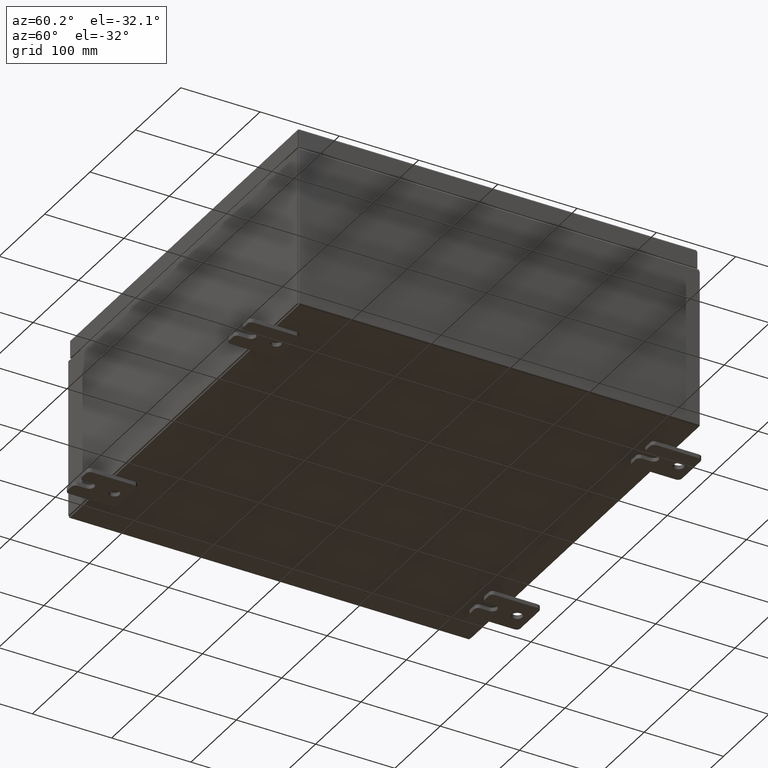
[diagram: clean part render]
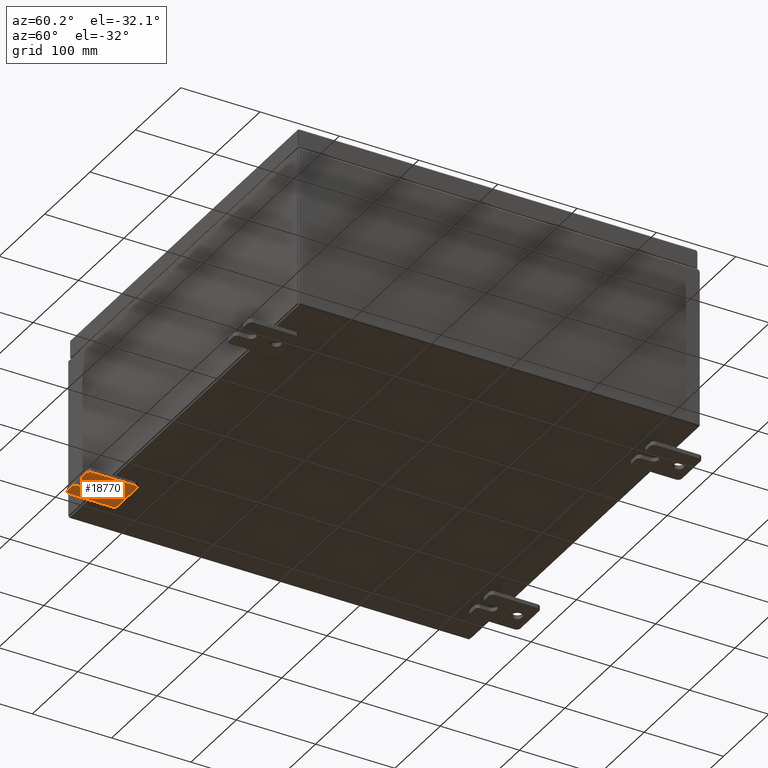
[diagram: same view with one face highlighted and labeled with its STEP entity id]
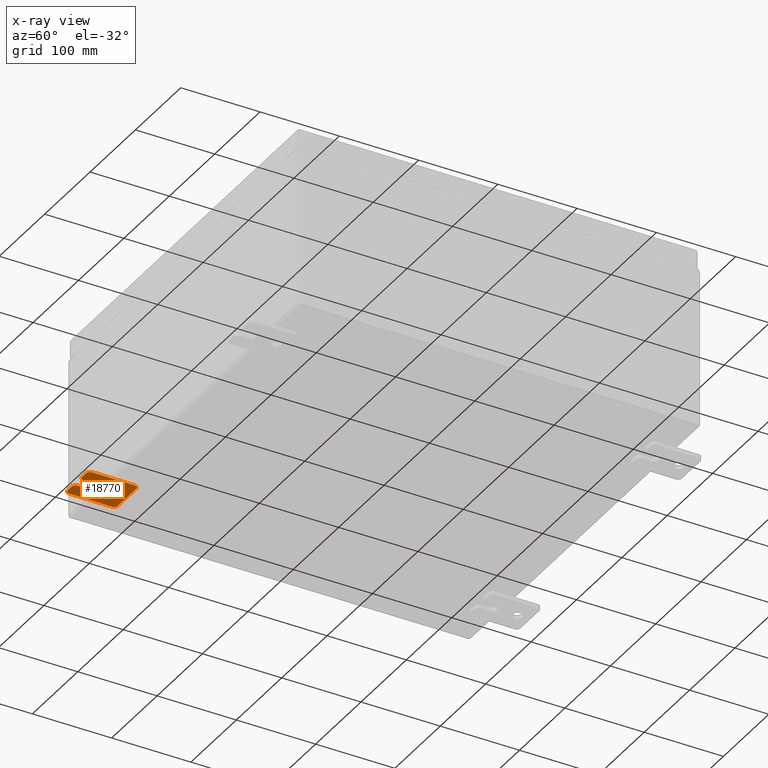
[diagram: x-ray of the same camera — body ghosted, the highlighted face saturated]
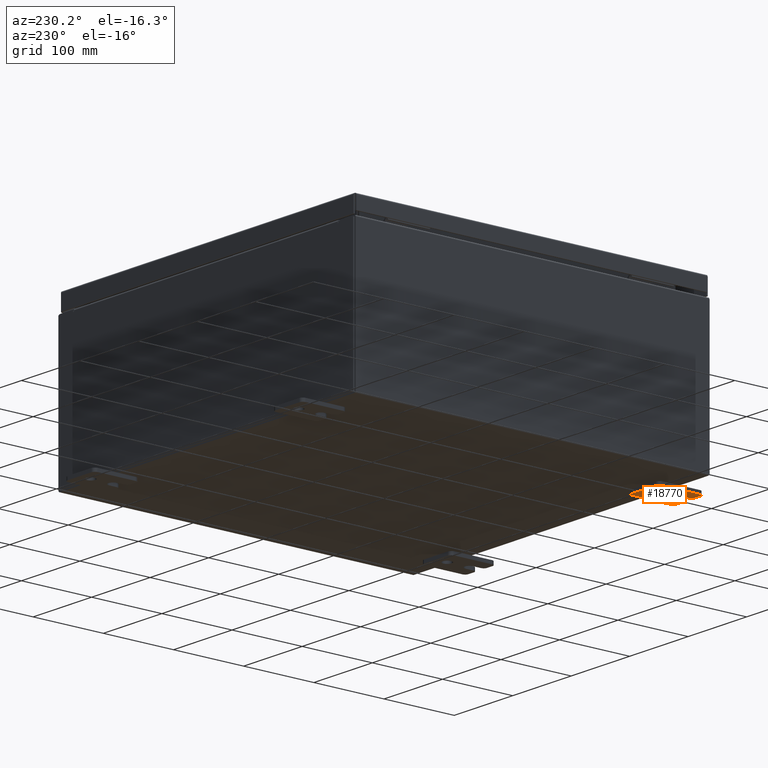
[diagram: same view with one face highlighted and labeled with its STEP entity id]
A machine part, auxiliary view. The second image highlights one B-rep face of the part: STEP entity #18770.
The next image is the same camera in x-ray: the body ghosted, the highlighted face saturated — about 0% of this face is hidden behind the body in this view.
A second angle (auxiliary view) of the same face is appended — the face is thin or edge-on in the first view.
In plain terms, the highlighted planar face has unit normal (0, 0, 1).
Its self-contained STEP definition (entity closure, byte-faithful):
#621 = CARTESIAN_POINT ( 'NONE',  ( -0.1880000000000004700, -1.060000000000003400, -0.2499999999999994400 ) ) ;
#1196 = CARTESIAN_POINT ( 'NONE',  ( -0.1880000000000001900, -0.6249999999999992200, -0.2499999999999993900 ) ) ;
#1689 = VERTEX_POINT ( 'NONE', #49524 ) ;
#2156 = CIRCLE ( 'NONE', #18433, 0.1900000000000011100 ) ;
#2888 = VERTEX_POINT ( 'NONE', #53144 ) ;
#3782 = EDGE_CURVE ( 'NONE', #29978, #16118, #25845, .T. ) ;
#3804 = LINE ( 'NONE', #33017, #44484 ) ;
#4277 = DIRECTION ( 'NONE',  ( 0.0000000000000000000, -1.639108796198553600E-015, -1.000000000000000000 ) ) ;
#4812 = AXIS2_PLACEMENT_3D ( 'NONE', #39625, #10228, #44544 ) ;
#5568 = DIRECTION ( 'NONE',  ( 0.0000000000000000000, 1.000000000000000000, -1.639108796198558100E-015 ) ) ;
#5922 = CARTESIAN_POINT ( 'NONE',  ( -0.1880000000000010000, 0.6249999999999992200, -7.703811342100550500E-020 ) ) ;
#6337 = CARTESIAN_POINT ( 'NONE',  ( -0.1880000000000004700, -1.060000000000002100, 0.2500000000000005000 ) ) ;
#7092 = ORIENTED_EDGE ( 'NONE', *, *, #30725, .T. ) ;
#7517 = LINE ( 'NONE', #1196, #35106 ) ;
#7537 = EDGE_CURVE ( 'NONE', #2888, #1689, #29253, .T. ) ;
#7865 = LINE ( 'NONE', #38674, #19326 ) ;
#8914 = DIRECTION ( 'NONE',  ( -1.000000000000000000, -0.0000000000000000000, 0.0000000000000000000 ) ) ;
#9251 = DIRECTION ( 'NONE',  ( 0.0000000000000000000, 1.639108796198553600E-015, 1.000000000000000000 ) ) ;
#9985 = VERTEX_POINT ( 'NONE', #39774 ) ;
#10143 = EDGE_LOOP ( 'NONE', ( #12572, #49768, #15398, #7092, #17786, #61388, #61694, #50624, #36425, #17057, #37440, #25002, #21096, #36300 ) ) ;
#10228 = DIRECTION ( 'NONE',  ( -1.000000000000000000, 6.523827964459549700E-016, 5.163192708025532000E-017 ) ) ;
#10686 = VECTOR ( 'NONE', #15940, 39.37007874015748100 ) ;
#10797 = DIRECTION ( 'NONE',  ( -1.000000000000000000, -0.0000000000000000000, 0.0000000000000000000 ) ) ;
#10897 = DIRECTION ( 'NONE',  ( 0.0000000000000000000, 0.0000000000000000000, -1.000000000000000000 ) ) ;
#11052 = CARTESIAN_POINT ( 'NONE',  ( -0.1880000000000005800, -1.250000000000003800, 0.2500000000000005000 ) ) ;
#11437 = CARTESIAN_POINT ( 'NONE',  ( -0.1880000000000001900, -0.6249999999999992200, 0.2500000000000005000 ) ) ;
#12572 = ORIENTED_EDGE ( 'NONE', *, *, #38375, .F. ) ;
#13296 = CARTESIAN_POINT ( 'NONE',  ( -0.1880000000000010000, 0.6249999999999992200, -7.703811342100550500E-020 ) ) ;
#14392 = EDGE_CURVE ( 'NONE', #32473, #42218, #26673, .T. ) ;
#14715 = LINE ( 'NONE', #54481, #39316 ) ;
#15398 = ORIENTED_EDGE ( 'NONE', *, *, #40998, .F. ) ;
#15753 = DIRECTION ( 'NONE',  ( -6.556435184794182400E-016, -1.000000000000000000, -1.639108796198545600E-016 ) ) ;
#15940 = DIRECTION ( 'NONE',  ( 6.556435184794182400E-016, 1.000000000000000000, 0.0000000000000000000 ) ) ;
#16118 = VERTEX_POINT ( 'NONE', #39492 ) ;
#17057 = ORIENTED_EDGE ( 'NONE', *, *, #14392, .T. ) ;
#17200 = FACE_OUTER_BOUND ( 'NONE', #10143, .T. ) ;
#17546 = CARTESIAN_POINT ( 'NONE',  ( -0.1879999999999997800, 0.0000000000000000000, 0.0000000000000000000 ) ) ;
#17786 = ORIENTED_EDGE ( 'NONE', *, *, #54498, .F. ) ;
#18191 = DIRECTION ( 'NONE',  ( 0.0000000000000000000, 0.0000000000000000000, -1.000000000000000000 ) ) ;
#18433 = AXIS2_PLACEMENT_3D ( 'NONE', #40206, #10797, #45108 ) ;
#18770 = ADVANCED_FACE ( 'NONE', ( #54792, #17200 ), #56788, .F. ) ;
#19326 = VECTOR ( 'NONE', #9251, 39.37007874015748100 ) ;
#20042 = DIRECTION ( 'NONE',  ( 0.0000000000000000000, -1.000000000000000000, 1.639108796198558100E-015 ) ) ;
#20088 = AXIS2_PLACEMENT_3D ( 'NONE', #13296, #47624, #18191 ) ;
#21096 = ORIENTED_EDGE ( 'NONE', *, *, #59653, .F. ) ;
#21314 = EDGE_CURVE ( 'NONE', #26872, #29155, #48773, .T. ) ;
#21485 = CARTESIAN_POINT ( 'NONE',  ( -0.1879999999999997800, -1.060000000000002100, 0.4400000000000016700 ) ) ;
#21968 = DIRECTION ( 'NONE',  ( -1.000000000000000000, -0.0000000000000000000, 0.0000000000000000000 ) ) ;
#22629 = CARTESIAN_POINT ( 'NONE',  ( -0.1879999999999997800, 1.059999999999993400, -1.000000000000010000 ) ) ;
#22903 = CARTESIAN_POINT ( 'NONE',  ( -0.1879999999999997800, -1.060000000000004100, -0.8100000000000050500 ) ) ;
#24474 = CARTESIAN_POINT ( 'NONE',  ( -0.1879999999999997800, -1.060000000000001600, 0.8099999999999978300 ) ) ;
#24500 = AXIS2_PLACEMENT_3D ( 'NONE', #21485, #55816, #26445 ) ;
#25002 = ORIENTED_EDGE ( 'NONE', *, *, #28749, .F. ) ;
#25792 = ORIENTED_EDGE ( 'NONE', *, *, #7537, .T. ) ;
#25829 = AXIS2_PLACEMENT_3D ( 'NONE', #17546, #27404, #61734 ) ;
#25845 = CIRCLE ( 'NONE', #24500, 0.1900000000000011400 ) ;
#25855 = CARTESIAN_POINT ( 'NONE',  ( -0.1879999999999997800, -1.060000000000004500, -1.000000000000006400 ) ) ;
#26445 = DIRECTION ( 'NONE',  ( 0.0000000000000000000, 0.0000000000000000000, -1.000000000000000000 ) ) ;
#26673 = CIRCLE ( 'NONE', #61464, 0.1900000000000011100 ) ;
#26872 = VERTEX_POINT ( 'NONE', #57513 ) ;
#26902 = CARTESIAN_POINT ( 'NONE',  ( -0.1879999999999997800, 1.249999999999997300, 0.8099999999999935000 ) ) ;
#27404 = DIRECTION ( 'NONE',  ( 1.000000000000000000, 0.0000000000000000000, -0.0000000000000000000 ) ) ;
#27833 = DIRECTION ( 'NONE',  ( 0.0000000000000000000, 0.0000000000000000000, -1.000000000000000000 ) ) ;
#28424 = VERTEX_POINT ( 'NONE', #49895 ) ;
#28749 = EDGE_CURVE ( 'NONE', #30849, #46800, #29875, .T. ) ;
#29080 = CARTESIAN_POINT ( 'NONE',  ( -0.1880000000000001900, -0.6249999999999992200, -0.2499999999999998600 ) ) ;
#29155 = VERTEX_POINT ( 'NONE', #22629 ) ;
#29181 = DIRECTION ( 'NONE',  ( 0.0000000000000000000, -1.639108796198553600E-015, -1.000000000000000000 ) ) ;
#29253 = CIRCLE ( 'NONE', #20088, 0.2499999999999999200 ) ;
#29403 = DIRECTION ( 'NONE',  ( 0.0000000000000000000, 7.189073667537492800E-016, -1.000000000000000000 ) ) ;
#29875 = CIRCLE ( 'NONE', #4812, 0.2499999999999999200 ) ;
#29978 = VERTEX_POINT ( 'NONE', #6337 ) ;
#30725 = EDGE_CURVE ( 'NONE', #9985, #59839, #2156, .T. ) ;
#30809 = AXIS2_PLACEMENT_3D ( 'NONE', #22903, #57218, #27833 ) ;
#30849 = VERTEX_POINT ( 'NONE', #11437 ) ;
#32473 = VERTEX_POINT ( 'NONE', #59662 ) ;
#32852 = VERTEX_POINT ( 'NONE', #61591 ) ;
#33017 = CARTESIAN_POINT ( 'NONE',  ( -0.1879999999999997800, -1.250000000000002200, 0.9999999999999992200 ) ) ;
#35106 = VECTOR ( 'NONE', #15753, 39.37007874015748100 ) ;
#35217 = LINE ( 'NONE', #11052, #10686 ) ;
#36274 = EDGE_CURVE ( 'NONE', #46800, #42218, #7517, .T. ) ;
#36300 = ORIENTED_EDGE ( 'NONE', *, *, #3782, .T. ) ;
#36425 = ORIENTED_EDGE ( 'NONE', *, *, #59378, .F. ) ;
#37316 = LINE ( 'NONE', #63500, #48798 ) ;
#37440 = ORIENTED_EDGE ( 'NONE', *, *, #36274, .F. ) ;
#38327 = CARTESIAN_POINT ( 'NONE',  ( -0.1879999999999997800, -1.060000000000003400, -0.4400000000000005000 ) ) ;
#38375 = EDGE_CURVE ( 'NONE', #32852, #16118, #37316, .T. ) ;
#38674 = CARTESIAN_POINT ( 'NONE',  ( -0.1879999999999997800, 1.249999999999994200, -1.000000000000010400 ) ) ;
#39312 = AXIS2_PLACEMENT_3D ( 'NONE', #5922, #40289, #10897 ) ;
#39316 = VECTOR ( 'NONE', #5568, 39.37007874015748100 ) ;
#39384 = EDGE_LOOP ( 'NONE', ( #25792, #44984 ) ) ;
#39492 = CARTESIAN_POINT ( 'NONE',  ( -0.1879999999999997800, -1.250000000000003100, 0.4400000000000020000 ) ) ;
#39625 = CARTESIAN_POINT ( 'NONE',  ( -0.1880000000000001900, -0.6249999999999992200, 6.829619984160658000E-017 ) ) ;
#39774 = CARTESIAN_POINT ( 'NONE',  ( -0.1879999999999997800, 1.059999999999996500, 0.9999999999999953400 ) ) ;
#39866 = EDGE_CURVE ( 'NONE', #40276, #47539, #41952, .T. ) ;
#40206 = CARTESIAN_POINT ( 'NONE',  ( -0.1879999999999997800, 1.059999999999996300, 0.8099999999999938400 ) ) ;
#40276 = VERTEX_POINT ( 'NONE', #25855 ) ;
#40289 = DIRECTION ( 'NONE',  ( 1.000000000000000000, -0.0000000000000000000, -5.163192708025532000E-017 ) ) ;
#40998 = EDGE_CURVE ( 'NONE', #9985, #28424, #50285, .T. ) ;
#41952 = CIRCLE ( 'NONE', #30809, 0.1900000000000011100 ) ;
#42218 = VERTEX_POINT ( 'NONE', #621 ) ;
#42776 = EDGE_CURVE ( 'NONE', #32852, #28424, #61696, .T. ) ;
#43249 = DIRECTION ( 'NONE',  ( 0.0000000000000000000, 0.0000000000000000000, -1.000000000000000000 ) ) ;
#44484 = VECTOR ( 'NONE', #4277, 39.37007874015748100 ) ;
#44544 = DIRECTION ( 'NONE',  ( -6.829619984160660000E-016, -1.000000000000000000, 0.0000000000000000000 ) ) ;
#44984 = ORIENTED_EDGE ( 'NONE', *, *, #60281, .T. ) ;
#45108 = DIRECTION ( 'NONE',  ( 0.0000000000000000000, 0.0000000000000000000, -1.000000000000000000 ) ) ;
#46800 = VERTEX_POINT ( 'NONE', #29080 ) ;
#47539 = VERTEX_POINT ( 'NONE', #49337 ) ;
#47624 = DIRECTION ( 'NONE',  ( 1.000000000000000000, -0.0000000000000000000, -5.163192708025532000E-017 ) ) ;
#48122 = AXIS2_PLACEMENT_3D ( 'NONE', #51357, #21968, #56300 ) ;
#48591 = AXIS2_PLACEMENT_3D ( 'NONE', #24474, #58796, #29403 ) ;
#48742 = VECTOR ( 'NONE', #20042, 39.37007874015748100 ) ;
#48773 = CIRCLE ( 'NONE', #48122, 0.1900000000000011100 ) ;
#48798 = VECTOR ( 'NONE', #29181, 39.37007874015748100 ) ;
#49337 = CARTESIAN_POINT ( 'NONE',  ( -0.1879999999999997800, -1.250000000000005300, -0.8100000000000047200 ) ) ;
#49437 = CARTESIAN_POINT ( 'NONE',  ( -0.1879999999999997800, 1.249999999999997600, 0.9999999999999951200 ) ) ;
#49524 = CARTESIAN_POINT ( 'NONE',  ( -0.1880000000000010000, 0.6249999999999992200, 0.2499999999999999200 ) ) ;
#49768 = ORIENTED_EDGE ( 'NONE', *, *, #42776, .T. ) ;
#49895 = CARTESIAN_POINT ( 'NONE',  ( -0.1879999999999997800, -1.060000000000001200, 0.9999999999999988900 ) ) ;
#50285 = LINE ( 'NONE', #49437, #48742 ) ;
#50624 = ORIENTED_EDGE ( 'NONE', *, *, #39866, .T. ) ;
#51357 = CARTESIAN_POINT ( 'NONE',  ( -0.1879999999999997800, 1.059999999999993600, -0.8100000000000089400 ) ) ;
#53144 = CARTESIAN_POINT ( 'NONE',  ( -0.1880000000000010000, 0.6249999999999992200, -0.2499999999999999200 ) ) ;
#54481 = CARTESIAN_POINT ( 'NONE',  ( -0.1879999999999997800, -1.250000000000005600, -1.000000000000006200 ) ) ;
#54498 = EDGE_CURVE ( 'NONE', #26872, #59839, #7865, .T. ) ;
#54696 = EDGE_CURVE ( 'NONE', #40276, #29155, #14715, .T. ) ;
#54792 = FACE_BOUND ( 'NONE', #39384, .T. ) ;
#55816 = DIRECTION ( 'NONE',  ( -1.000000000000000000, -0.0000000000000000000, 0.0000000000000000000 ) ) ;
#56300 = DIRECTION ( 'NONE',  ( 0.0000000000000000000, 0.0000000000000000000, -1.000000000000000000 ) ) ;
#56788 = PLANE ( 'NONE',  #25829 ) ;
#57218 = DIRECTION ( 'NONE',  ( -1.000000000000000000, -0.0000000000000000000, 0.0000000000000000000 ) ) ;
#57513 = CARTESIAN_POINT ( 'NONE',  ( -0.1879999999999997800, 1.249999999999994700, -0.8100000000000092700 ) ) ;
#58796 = DIRECTION ( 'NONE',  ( -1.000000000000000000, -0.0000000000000000000, 0.0000000000000000000 ) ) ;
#59378 = EDGE_CURVE ( 'NONE', #32473, #47539, #3804, .T. ) ;
#59653 = EDGE_CURVE ( 'NONE', #29978, #30849, #35217, .T. ) ;
#59662 = CARTESIAN_POINT ( 'NONE',  ( -0.1879999999999997800, -1.250000000000004700, -0.4400000000000002200 ) ) ;
#59839 = VERTEX_POINT ( 'NONE', #26902 ) ;
#60281 = EDGE_CURVE ( 'NONE', #1689, #2888, #61326, .T. ) ;
#61326 = CIRCLE ( 'NONE', #39312, 0.2499999999999999200 ) ;
#61388 = ORIENTED_EDGE ( 'NONE', *, *, #21314, .T. ) ;
#61464 = AXIS2_PLACEMENT_3D ( 'NONE', #38327, #8914, #43249 ) ;
#61591 = CARTESIAN_POINT ( 'NONE',  ( -0.1879999999999997800, -1.250000000000002400, 0.8099999999999980500 ) ) ;
#61694 = ORIENTED_EDGE ( 'NONE', *, *, #54696, .F. ) ;
#61696 = CIRCLE ( 'NONE', #48591, 0.1900000000000011100 ) ;
#61734 = DIRECTION ( 'NONE',  ( -0.0000000000000000000, 0.0000000000000000000, -1.000000000000000000 ) ) ;
#63500 = CARTESIAN_POINT ( 'NONE',  ( -0.1879999999999997800, -1.250000000000002200, 0.9999999999999992200 ) ) ;